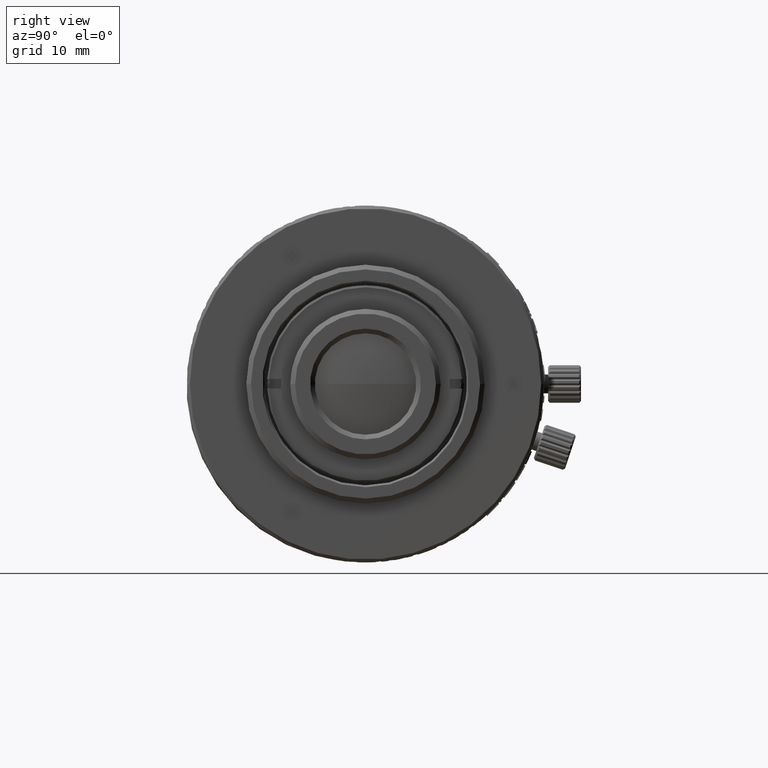
[diagram: clean part render]
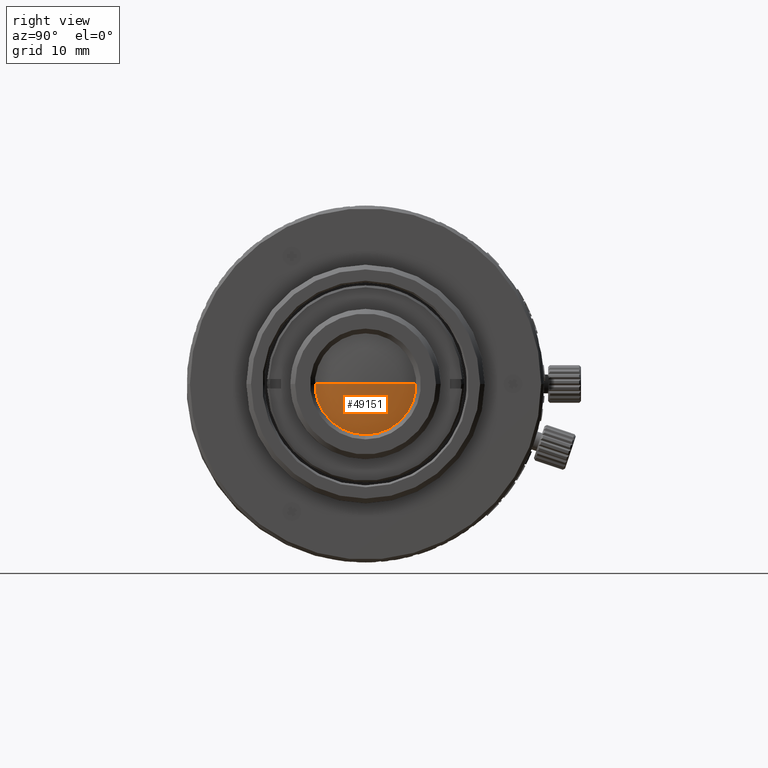
[diagram: same view with one face highlighted and labeled with its STEP entity id]
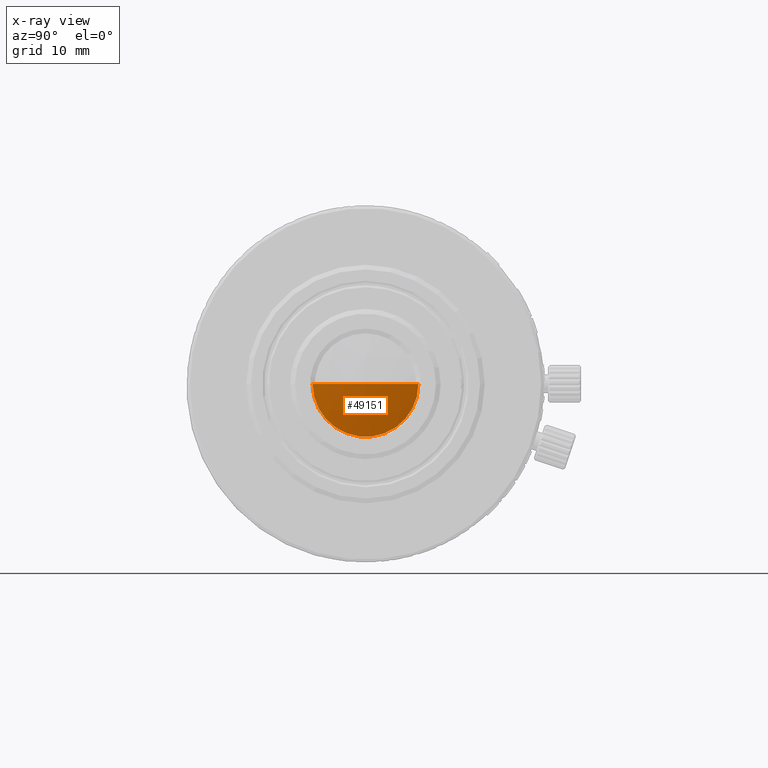
[diagram: x-ray of the same camera — body ghosted, the highlighted face saturated]
A machine part, right view. The second image highlights one B-rep face of the part: STEP entity #49151.
The next image is the same camera in x-ray: the body ghosted, the highlighted face saturated — about 0% of this face is hidden behind the body in this view.
In plain terms, the highlighted spherical surface has radius 35.487 mm.
Its self-contained STEP definition (entity closure, byte-faithful):
#1181 = CARTESIAN_POINT ( 'NONE',  ( 30.68294706212893530, 18.80004786563999630, -18.90000000000000213 ) ) ;
#1438 = ORIENTED_EDGE ( 'NONE', *, *, #3049, .F. ) ;
#2276 = DIRECTION ( 'NONE',  ( 0.000000000000000000, 0.000000000000000000, 1.000000000000000000 ) ) ;
#3049 = EDGE_CURVE ( 'NONE', #54436, #41218, #16269, .T. ) ;
#8970 = AXIS2_PLACEMENT_3D ( 'NONE', #48897, #39669, #35728 ) ;
#9086 = ORIENTED_EDGE ( 'NONE', *, *, #44254, .F. ) ;
#13433 = CIRCLE ( 'NONE', #8970, 35.48699999999988108 ) ;
#14280 = DIRECTION ( 'NONE',  ( 0.000000000000000000, -0.000000000000000000, 1.000000000000000000 ) ) ;
#14477 = AXIS2_PLACEMENT_3D ( 'NONE', #1181, #26721, #2276 ) ;
#15265 = CIRCLE ( 'NONE', #37665, 35.48699999999988108 ) ;
#16178 = EDGE_LOOP ( 'NONE', ( #9086, #1438, #40832 ) ) ;
#16269 = CIRCLE ( 'NONE', #14477, 5.631709464254971209 ) ;
#20375 = VERTEX_POINT ( 'NONE', #37925 ) ;
#22736 = SPHERICAL_SURFACE ( 'NONE', #40584, 35.48699999999988108 ) ;
#24156 = DIRECTION ( 'NONE',  ( 0.000000000000000000, -1.000000000000000000, 9.776670194588514158E-17 ) ) ;
#26721 = DIRECTION ( 'NONE',  ( -1.000000000000000000, -0.000000000000000000, 0.000000000000000000 ) ) ;
#27495 = FACE_OUTER_BOUND ( 'NONE', #16178, .T. ) ;
#35728 = DIRECTION ( 'NONE',  ( -1.000000000000000000, 0.000000000000000000, 0.000000000000000000 ) ) ;
#36167 = DIRECTION ( 'NONE',  ( 0.000000000000000000, 1.000000000000000000, 0.000000000000000000 ) ) ;
#36761 = DIRECTION ( 'NONE',  ( 0.000000000000000000, 1.224646799147353207E-16, 1.000000000000000000 ) ) ;
#37665 = AXIS2_PLACEMENT_3D ( 'NONE', #46001, #36761, #24156 ) ;
#37925 = CARTESIAN_POINT ( 'NONE',  ( 31.13266666666700289, 18.80004786564000341, -18.89999999999999858 ) ) ;
#39669 = DIRECTION ( 'NONE',  ( -0.000000000000000000, 0.000000000000000000, -1.000000000000000000 ) ) ;
#40584 = AXIS2_PLACEMENT_3D ( 'NONE', #52688, #14280, #36167 ) ;
#40832 = ORIENTED_EDGE ( 'NONE', *, *, #43732, .T. ) ;
#41218 = VERTEX_POINT ( 'NONE', #54807 ) ;
#43732 = EDGE_CURVE ( 'NONE', #54436, #20375, #13433, .T. ) ;
#44254 = EDGE_CURVE ( 'NONE', #41218, #20375, #15265, .T. ) ;
#46001 = CARTESIAN_POINT ( 'NONE',  ( -4.354333333332877309, 18.80004786563999986, -18.89999999999999858 ) ) ;
#48897 = CARTESIAN_POINT ( 'NONE',  ( -4.354333333332877309, 18.80004786563999986, -18.89999999999999858 ) ) ;
#49151 = ADVANCED_FACE ( 'NONE', ( #27495 ), #22736, .T. ) ;
#52688 = CARTESIAN_POINT ( 'NONE',  ( -4.354333333332877309, 18.80004786563999986, -18.89999999999999858 ) ) ;
#53040 = CARTESIAN_POINT ( 'NONE',  ( 30.68294706212893530, 24.43175732989497106, -18.90000000000000213 ) ) ;
#54436 = VERTEX_POINT ( 'NONE', #53040 ) ;
#54807 = CARTESIAN_POINT ( 'NONE',  ( 30.68294706212893530, 13.16833840138502509, -18.90000000000000213 ) ) ;